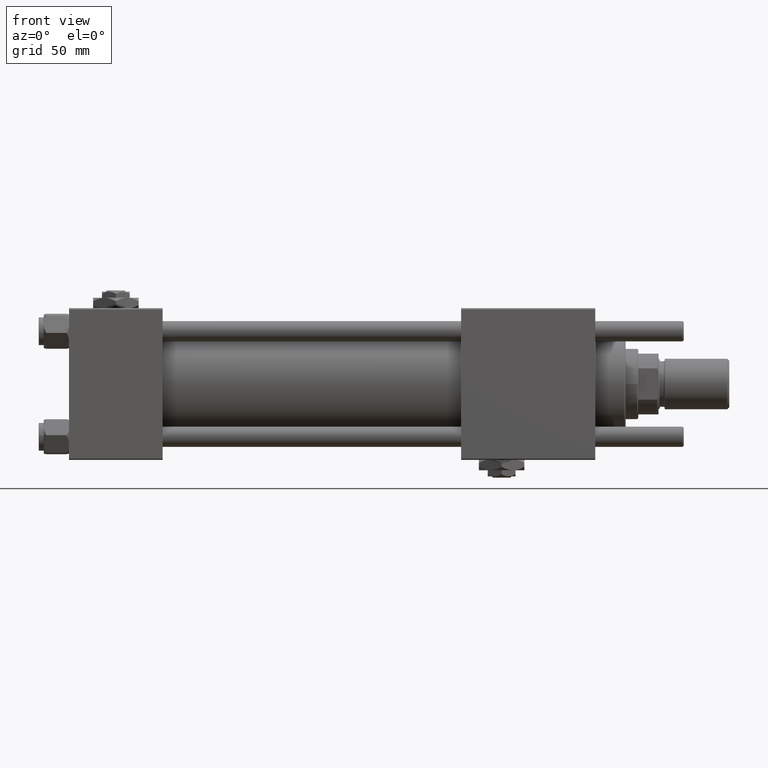
[diagram: clean part render]
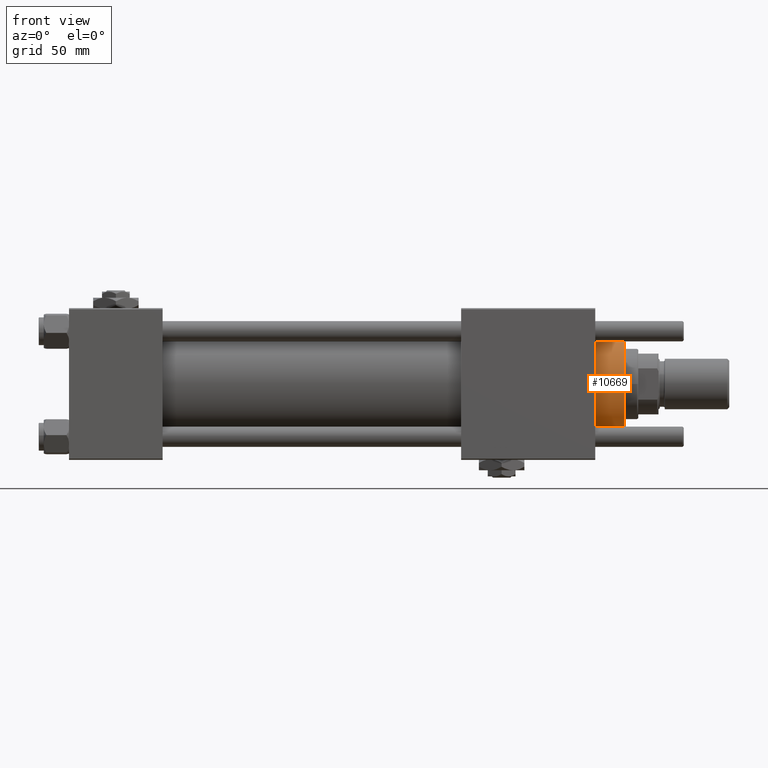
[diagram: same view with one face highlighted and labeled with its STEP entity id]
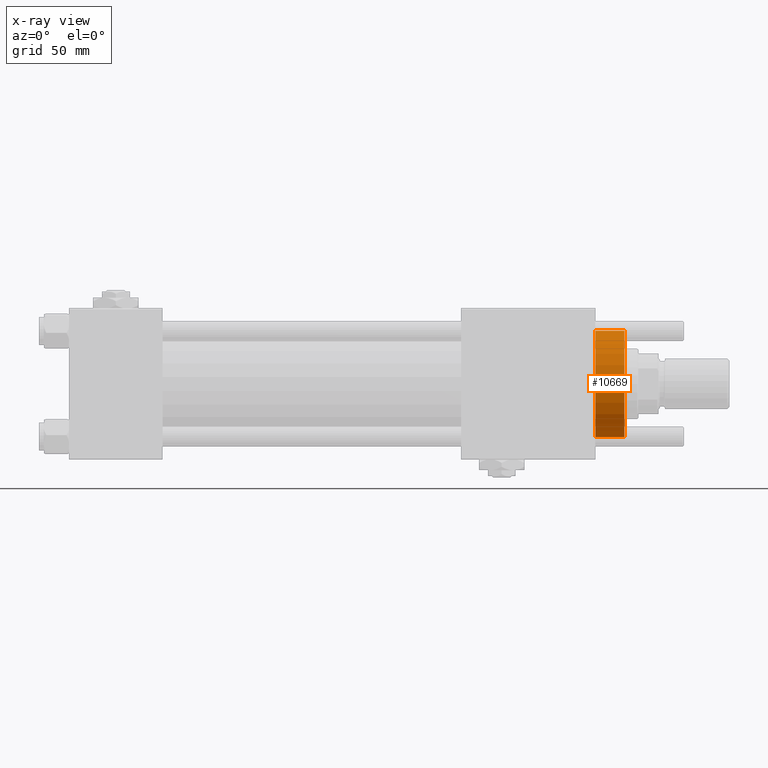
[diagram: x-ray of the same camera — body ghosted, the highlighted face saturated]
A machine part, front view. The second image highlights one B-rep face of the part: STEP entity #10669.
The next image is the same camera in x-ray: the body ghosted, the highlighted face saturated — about 0% of this face is hidden behind the body in this view.
In plain terms, the highlighted cylindrical surface (partial cylindrical patch) has radius 21 mm, axis along (-1, -0, 0).
Its self-contained STEP definition (entity closure, byte-faithful):
#986 = AXIS2_PLACEMENT_3D ( 'NONE', #47080, #10163, #19760 ) ;
#1733 = VECTOR ( 'NONE', #51177, 1000.000000000000000 ) ;
#3683 = CARTESIAN_POINT ( 'NONE',  ( -21.00000000000000000, 0.000000000000000000, 40.70000000000000284 ) ) ;
#3974 = DIRECTION ( 'NONE',  ( -0.000000000000000000, -0.000000000000000000, -1.000000000000000000 ) ) ;
#5818 = VECTOR ( 'NONE', #31587, 1000.000000000000000 ) ;
#7391 = ORIENTED_EDGE ( 'NONE', *, *, #58398, .T. ) ;
#8007 = CARTESIAN_POINT ( 'NONE',  ( -21.00000000000000000, 0.000000000000000000, 28.69999999999999929 ) ) ;
#9448 = CIRCLE ( 'NONE', #52576, 21.00000000000000000 ) ;
#10163 = DIRECTION ( 'NONE',  ( 0.000000000000000000, 0.000000000000000000, -1.000000000000000000 ) ) ;
#10615 = EDGE_CURVE ( 'NONE', #47835, #11391, #25910, .T. ) ;
#10669 = ADVANCED_FACE ( 'NONE', ( #40592 ), #49014, .T. ) ;
#11391 = VERTEX_POINT ( 'NONE', #8007 ) ;
#11960 = ORIENTED_EDGE ( 'NONE', *, *, #10615, .T. ) ;
#12088 = DIRECTION ( 'NONE',  ( 1.000000000000000000, 0.000000000000000000, 0.000000000000000000 ) ) ;
#18242 = CARTESIAN_POINT ( 'NONE',  ( 21.00000000000000000, 2.571758278209441661E-15, 40.19999999999998863 ) ) ;
#18790 = CARTESIAN_POINT ( 'NONE',  ( 21.00000000000000000, 2.571758278209441661E-15, 40.70000000000000284 ) ) ;
#19432 = EDGE_LOOP ( 'NONE', ( #44329, #7391, #11960, #55046 ) ) ;
#19760 = DIRECTION ( 'NONE',  ( 1.000000000000000000, 0.000000000000000000, 0.000000000000000000 ) ) ;
#24843 = CARTESIAN_POINT ( 'NONE',  ( 21.00000000000000000, 2.571758278209441661E-15, 28.69999999999999929 ) ) ;
#25910 = LINE ( 'NONE', #3683, #5818 ) ;
#31587 = DIRECTION ( 'NONE',  ( -0.000000000000000000, -0.000000000000000000, -1.000000000000000000 ) ) ;
#34610 = DIRECTION ( 'NONE',  ( 0.000000000000000000, 0.000000000000000000, 1.000000000000000000 ) ) ;
#35215 = CARTESIAN_POINT ( 'NONE',  ( 0.000000000000000000, 0.000000000000000000, 40.70000000000000284 ) ) ;
#40592 = FACE_OUTER_BOUND ( 'NONE', #19432, .T. ) ;
#44215 = DIRECTION ( 'NONE',  ( -1.000000000000000000, 0.000000000000000000, 0.000000000000000000 ) ) ;
#44329 = ORIENTED_EDGE ( 'NONE', *, *, #51706, .F. ) ;
#45881 = VERTEX_POINT ( 'NONE', #24843 ) ;
#45949 = CARTESIAN_POINT ( 'NONE',  ( -21.00000000000000000, 0.000000000000000000, 40.19999999999998863 ) ) ;
#47080 = CARTESIAN_POINT ( 'NONE',  ( 0.000000000000000000, 0.000000000000000000, 40.19999999999998863 ) ) ;
#47835 = VERTEX_POINT ( 'NONE', #45949 ) ;
#49014 = CYLINDRICAL_SURFACE ( 'NONE', #51871, 21.00000000000000000 ) ;
#49083 = VERTEX_POINT ( 'NONE', #18242 ) ;
#50823 = CIRCLE ( 'NONE', #986, 21.00000000000000000 ) ;
#51177 = DIRECTION ( 'NONE',  ( -0.000000000000000000, -0.000000000000000000, -1.000000000000000000 ) ) ;
#51706 = EDGE_CURVE ( 'NONE', #49083, #45881, #51767, .T. ) ;
#51767 = LINE ( 'NONE', #18790, #1733 ) ;
#51871 = AXIS2_PLACEMENT_3D ( 'NONE', #35215, #3974, #44215 ) ;
#52576 = AXIS2_PLACEMENT_3D ( 'NONE', #53197, #34610, #12088 ) ;
#53049 = EDGE_CURVE ( 'NONE', #11391, #45881, #9448, .T. ) ;
#53197 = CARTESIAN_POINT ( 'NONE',  ( 0.000000000000000000, 0.000000000000000000, 28.69999999999999929 ) ) ;
#55046 = ORIENTED_EDGE ( 'NONE', *, *, #53049, .T. ) ;
#58398 = EDGE_CURVE ( 'NONE', #49083, #47835, #50823, .T. ) ;